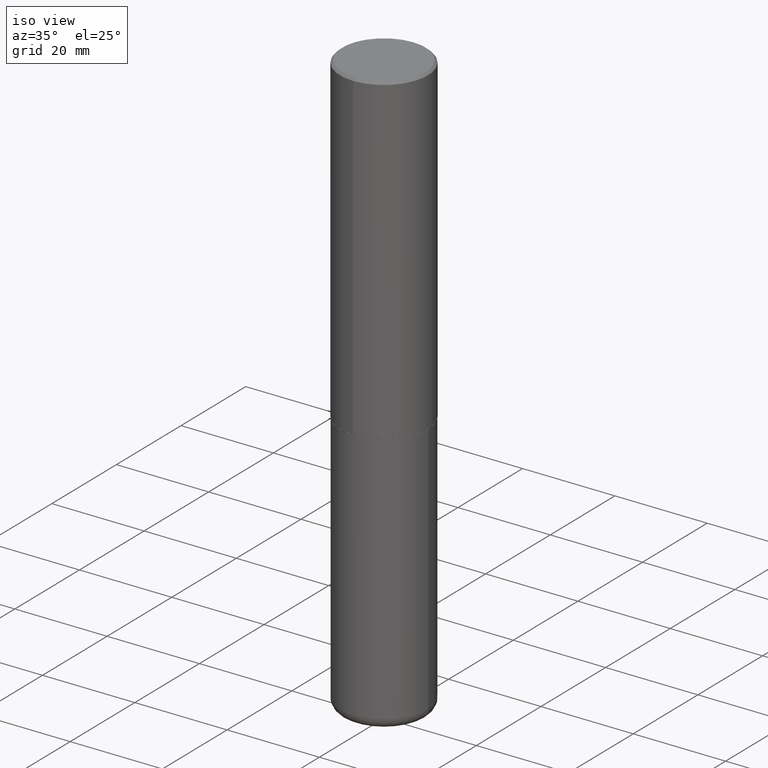
[diagram: clean part render]
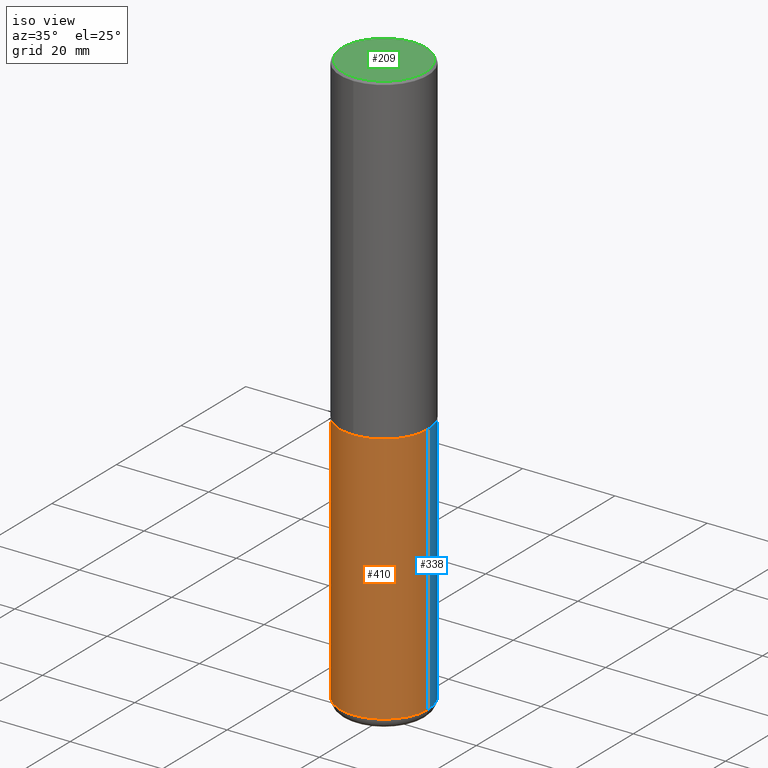
[diagram: same view with three faces highlighted in distinct colors, each labeled with its STEP entity id]
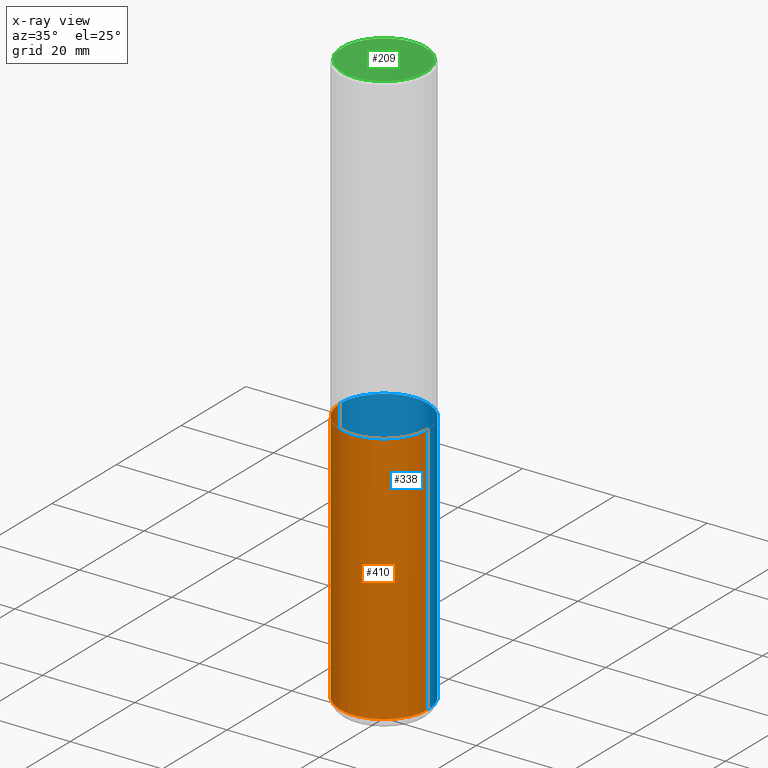
[diagram: x-ray of the same camera — body ghosted, the three highlighted faces saturated]
A machine part, iso view with three faces highlighted in distinct colors.
The next image is the same camera in x-ray (body ghosted, the three faces saturated) — at least one of them is partly hidden behind the body in this view.
Their STEP definitions:

[orange] entity #410 — the highlighted cylindrical surface (partial cylindrical patch) has radius 9.525 mm, axis along (-0, 0, 1).
#3 = VECTOR ( 'NONE', #256, 39.37007874015748143 ) ;
#8 = CARTESIAN_POINT ( 'NONE',  ( -0.3750000000000000555, -1.070783826866887333E-14, -2.750000000000000000 ) ) ;
#9 = DIRECTION ( 'NONE',  ( -2.445468806185136597E-29, 3.491481338843145583E-15, 1.000000000000000000 ) ) ;
#15 = DIRECTION ( 'NONE',  ( -2.445468806185136597E-29, 3.491481338843145583E-15, 1.000000000000000000 ) ) ;
#37 = ORIENTED_EDGE ( 'NONE', *, *, #124, .F. ) ;
#47 = CIRCLE ( 'NONE', #302, 0.3750000000000000555 ) ;
#56 = EDGE_CURVE ( 'NONE', #396, #125, #47, .T. ) ;
#59 = LINE ( 'NONE', #158, #3 ) ;
#66 = ORIENTED_EDGE ( 'NONE', *, *, #99, .T. ) ;
#67 = CYLINDRICAL_SURFACE ( 'NONE', #354, 0.3749999999999999445 ) ;
#84 = CARTESIAN_POINT ( 'NONE',  ( 1.200725183836902132E-28, -1.714317337371984662E-14, -4.910000000000000142 ) ) ;
#98 = VERTEX_POINT ( 'NONE', #178 ) ;
#99 = EDGE_CURVE ( 'NONE', #403, #98, #228, .T. ) ;
#124 = EDGE_CURVE ( 'NONE', #403, #396, #368, .T. ) ;
#125 = VERTEX_POINT ( 'NONE', #401 ) ;
#143 = DIRECTION ( 'NONE',  ( -2.445468806185136877E-29, 3.491481338843145188E-15, 1.000000000000000000 ) ) ;
#158 = CARTESIAN_POINT ( 'NONE',  ( 0.3749999999999999445, -2.618611004132349622E-15, 1.828566290923475642E-29 ) ) ;
#161 = DIRECTION ( 'NONE',  ( 1.000000000000000000, -6.982962677686266711E-15, 4.876176775795935793E-29 ) ) ;
#165 = CARTESIAN_POINT ( 'NONE',  ( -0.3749999999999999445, -1.447863811461947092E-14, -4.910000000000000142 ) ) ;
#178 = CARTESIAN_POINT ( 'NONE',  ( 0.3749999999999999445, -1.976178437785219664E-14, -4.910000000000000142 ) ) ;
#218 = DIRECTION ( 'NONE',  ( 1.000000000000000000, -6.982962677686269077E-15, 0.000000000000000000 ) ) ;
#222 = ORIENTED_EDGE ( 'NONE', *, *, #56, .F. ) ;
#228 = CIRCLE ( 'NONE', #356, 0.3749999999999999445 ) ;
#233 = ORIENTED_EDGE ( 'NONE', *, *, #319, .T. ) ;
#236 = EDGE_LOOP ( 'NONE', ( #37, #66, #233, #222 ) ) ;
#249 = CARTESIAN_POINT ( 'NONE',  ( 6.725039217009124520E-29, -9.601573681818649859E-15, -2.750000000000000000 ) ) ;
#256 = DIRECTION ( 'NONE',  ( -2.445468806185136877E-29, 3.491481338843145188E-15, 1.000000000000000000 ) ) ;
#273 = CARTESIAN_POINT ( 'NONE',  ( -0.3749999999999999445, 2.664535259100375303E-15, -1.844600658845589318E-29 ) ) ;
#302 = AXIS2_PLACEMENT_3D ( 'NONE', #249, #9, #313 ) ;
#313 = DIRECTION ( 'NONE',  ( 1.000000000000000000, -6.982962677686266711E-15, 0.000000000000000000 ) ) ;
#319 = EDGE_CURVE ( 'NONE', #98, #125, #59, .T. ) ;
#333 = VECTOR ( 'NONE', #143, 39.37007874015748143 ) ;
#354 = AXIS2_PLACEMENT_3D ( 'NONE', #399, #397, #161 ) ;
#356 = AXIS2_PLACEMENT_3D ( 'NONE', #84, #15, #218 ) ;
#368 = LINE ( 'NONE', #273, #333 ) ;
#396 = VERTEX_POINT ( 'NONE', #8 ) ;
#397 = DIRECTION ( 'NONE',  ( -2.445468806185136597E-29, 3.491481338843145583E-15, 1.000000000000000000 ) ) ;
#399 = CARTESIAN_POINT ( 'NONE',  ( 0.000000000000000000, 0.000000000000000000, 0.000000000000000000 ) ) ;
#401 = CARTESIAN_POINT ( 'NONE',  ( 0.3750000000000000555, -1.222018468595100145E-14, -2.750000000000000000 ) ) ;
#403 = VERTEX_POINT ( 'NONE', #165 ) ;
#404 = FACE_OUTER_BOUND ( 'NONE', #236, .T. ) ;
#410 = ADVANCED_FACE ( 'NONE', ( #404 ), #67, .T. ) ;

[blue] entity #338 — the highlighted cylindrical surface (partial cylindrical patch) has radius 9.525 mm, axis along (-0, 0, 1).
#3 = VECTOR ( 'NONE', #256, 39.37007874015748143 ) ;
#8 = CARTESIAN_POINT ( 'NONE',  ( -0.3750000000000000555, -1.070783826866887333E-14, -2.750000000000000000 ) ) ;
#24 = ORIENTED_EDGE ( 'NONE', *, *, #124, .T. ) ;
#27 = ORIENTED_EDGE ( 'NONE', *, *, #386, .F. ) ;
#55 = CIRCLE ( 'NONE', #291, 0.3749999999999999445 ) ;
#59 = LINE ( 'NONE', #158, #3 ) ;
#73 = DIRECTION ( 'NONE',  ( -2.445468806185136597E-29, 3.491481338843145583E-15, 1.000000000000000000 ) ) ;
#98 = VERTEX_POINT ( 'NONE', #178 ) ;
#124 = EDGE_CURVE ( 'NONE', #403, #396, #368, .T. ) ;
#125 = VERTEX_POINT ( 'NONE', #401 ) ;
#136 = DIRECTION ( 'NONE',  ( 1.000000000000000000, -6.982962677686266711E-15, 4.876176775795935793E-29 ) ) ;
#141 = DIRECTION ( 'NONE',  ( -2.445468806185136597E-29, 3.491481338843145583E-15, 1.000000000000000000 ) ) ;
#143 = DIRECTION ( 'NONE',  ( -2.445468806185136877E-29, 3.491481338843145188E-15, 1.000000000000000000 ) ) ;
#157 = EDGE_LOOP ( 'NONE', ( #287, #24, #27, #196 ) ) ;
#158 = CARTESIAN_POINT ( 'NONE',  ( 0.3749999999999999445, -2.618611004132349622E-15, 1.828566290923475642E-29 ) ) ;
#165 = CARTESIAN_POINT ( 'NONE',  ( -0.3749999999999999445, -1.447863811461947092E-14, -4.910000000000000142 ) ) ;
#172 = DIRECTION ( 'NONE',  ( 1.000000000000000000, -6.982962677686269077E-15, 0.000000000000000000 ) ) ;
#178 = CARTESIAN_POINT ( 'NONE',  ( 0.3749999999999999445, -1.976178437785219664E-14, -4.910000000000000142 ) ) ;
#196 = ORIENTED_EDGE ( 'NONE', *, *, #319, .F. ) ;
#229 = CIRCLE ( 'NONE', #371, 0.3750000000000000555 ) ;
#232 = CARTESIAN_POINT ( 'NONE',  ( 1.200725183836902132E-28, -1.714317337371984662E-14, -4.910000000000000142 ) ) ;
#234 = FACE_OUTER_BOUND ( 'NONE', #157, .T. ) ;
#244 = CYLINDRICAL_SURFACE ( 'NONE', #271, 0.3749999999999999445 ) ;
#256 = DIRECTION ( 'NONE',  ( -2.445468806185136877E-29, 3.491481338843145188E-15, 1.000000000000000000 ) ) ;
#261 = DIRECTION ( 'NONE',  ( 1.000000000000000000, -6.982962677686266711E-15, 0.000000000000000000 ) ) ;
#271 = AXIS2_PLACEMENT_3D ( 'NONE', #337, #73, #136 ) ;
#273 = CARTESIAN_POINT ( 'NONE',  ( -0.3749999999999999445, 2.664535259100375303E-15, -1.844600658845589318E-29 ) ) ;
#287 = ORIENTED_EDGE ( 'NONE', *, *, #406, .T. ) ;
#291 = AXIS2_PLACEMENT_3D ( 'NONE', #232, #305, #172 ) ;
#305 = DIRECTION ( 'NONE',  ( -2.445468806185136597E-29, 3.491481338843145583E-15, 1.000000000000000000 ) ) ;
#314 = CARTESIAN_POINT ( 'NONE',  ( 6.725039217009124520E-29, -9.601573681818649859E-15, -2.750000000000000000 ) ) ;
#319 = EDGE_CURVE ( 'NONE', #98, #125, #59, .T. ) ;
#333 = VECTOR ( 'NONE', #143, 39.37007874015748143 ) ;
#337 = CARTESIAN_POINT ( 'NONE',  ( 0.000000000000000000, 0.000000000000000000, 0.000000000000000000 ) ) ;
#338 = ADVANCED_FACE ( 'NONE', ( #234 ), #244, .T. ) ;
#368 = LINE ( 'NONE', #273, #333 ) ;
#371 = AXIS2_PLACEMENT_3D ( 'NONE', #314, #141, #261 ) ;
#386 = EDGE_CURVE ( 'NONE', #125, #396, #229, .T. ) ;
#396 = VERTEX_POINT ( 'NONE', #8 ) ;
#401 = CARTESIAN_POINT ( 'NONE',  ( 0.3750000000000000555, -1.222018468595100145E-14, -2.750000000000000000 ) ) ;
#403 = VERTEX_POINT ( 'NONE', #165 ) ;
#406 = EDGE_CURVE ( 'NONE', #98, #403, #55, .T. ) ;

[green] entity #209 — the highlighted planar face has unit normal (0, -0, -1).
#16 = CIRCLE ( 'NONE', #349, 0.3549999999999999822 ) ;
#29 = ORIENTED_EDGE ( 'NONE', *, *, #402, .T. ) ;
#43 = DIRECTION ( 'NONE',  ( -6.982962677686265922E-15, -1.000000000000000000, 3.490662795793665557E-15 ) ) ;
#79 = AXIS2_PLACEMENT_3D ( 'NONE', #276, #345, #43 ) ;
#91 = CARTESIAN_POINT ( 'NONE',  ( 2.478951750578624209E-15, 0.3549999999999999822, -1.215853765202481601E-15 ) ) ;
#118 = FACE_OUTER_BOUND ( 'NONE', #301, .T. ) ;
#119 = AXIS2_PLACEMENT_3D ( 'NONE', #91, #146, #412 ) ;
#135 = ORIENTED_EDGE ( 'NONE', *, *, #173, .T. ) ;
#140 = VERTEX_POINT ( 'NONE', #373 ) ;
#146 = DIRECTION ( 'NONE',  ( 2.446040391741596045E-29, -3.490662795793665557E-15, -1.000000000000000000 ) ) ;
#173 = EDGE_CURVE ( 'NONE', #189, #140, #290, .T. ) ;
#189 = VERTEX_POINT ( 'NONE', #224 ) ;
#200 = CARTESIAN_POINT ( 'NONE',  ( -1.141397163745304909E-45, 1.628849886601155835E-31, 4.666305460853910467E-17 ) ) ;
#203 = DIRECTION ( 'NONE',  ( -2.446040391741596606E-29, 3.490662795793665557E-15, 1.000000000000000000 ) ) ;
#209 = ADVANCED_FACE ( 'NONE', ( #118 ), #259, .F. ) ;
#224 = CARTESIAN_POINT ( 'NONE',  ( -2.504081769186608216E-15, -0.3549999999999999822, 1.285848347115290366E-15 ) ) ;
#259 = PLANE ( 'NONE',  #119 ) ;
#275 = DIRECTION ( 'NONE',  ( -6.982962677686265922E-15, -1.000000000000000000, 3.490662795793665557E-15 ) ) ;
#276 = CARTESIAN_POINT ( 'NONE',  ( -1.141397163745304909E-45, 1.628849886601155835E-31, 4.666305460853910467E-17 ) ) ;
#290 = CIRCLE ( 'NONE', #79, 0.3549999999999999822 ) ;
#301 = EDGE_LOOP ( 'NONE', ( #29, #135 ) ) ;
#345 = DIRECTION ( 'NONE',  ( -2.446040391741596606E-29, 3.490662795793665557E-15, 1.000000000000000000 ) ) ;
#349 = AXIS2_PLACEMENT_3D ( 'NONE', #200, #203, #275 ) ;
#373 = CARTESIAN_POINT ( 'NONE',  ( 2.548781377355487113E-15, 0.3549999999999999822, -1.192522237898212341E-15 ) ) ;
#402 = EDGE_CURVE ( 'NONE', #140, #189, #16, .T. ) ;
#412 = DIRECTION ( 'NONE',  ( 6.982962677686265922E-15, 1.000000000000000000, -3.490662795793665557E-15 ) ) ;